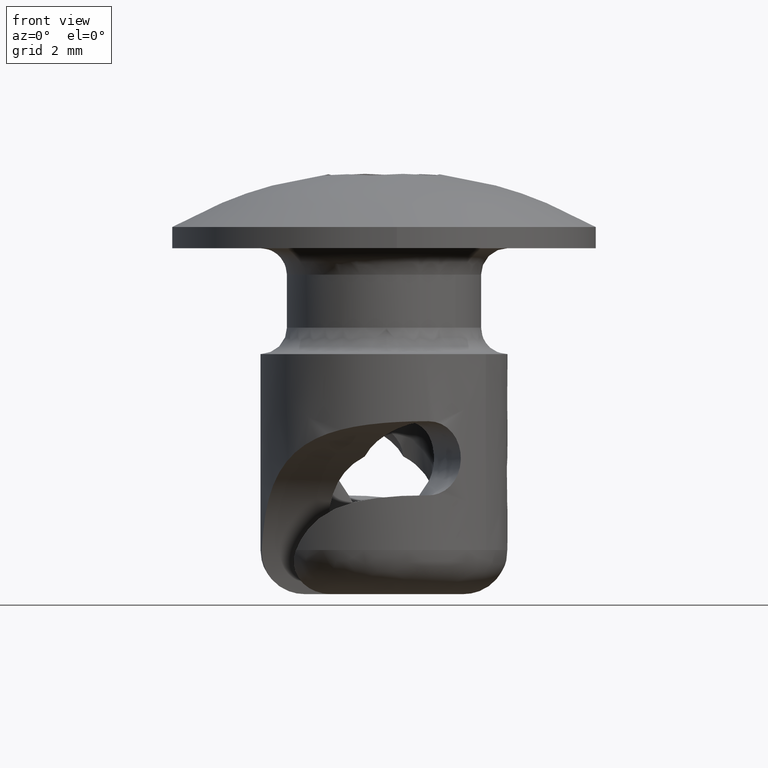
[diagram: clean part render]
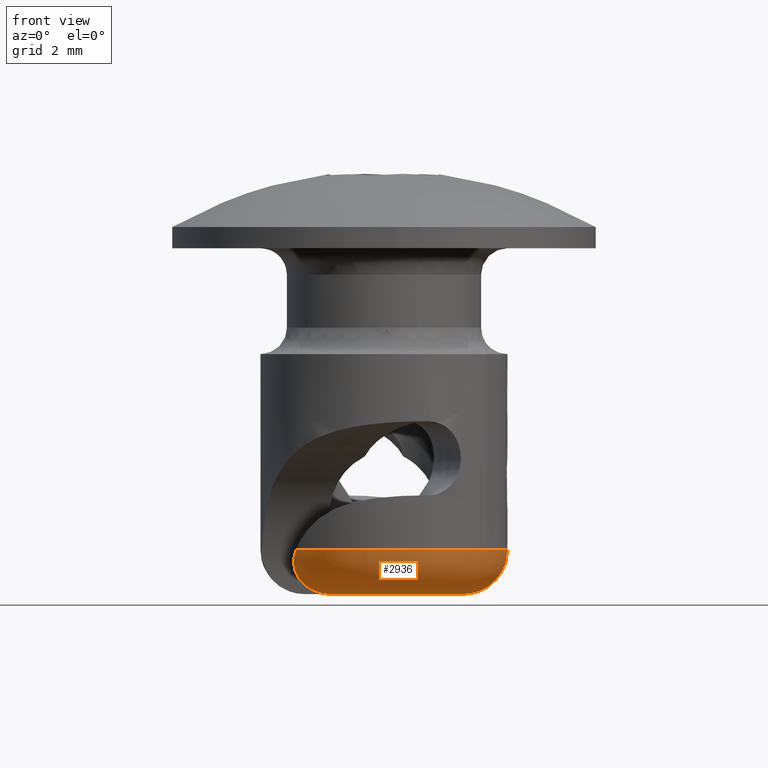
[diagram: same view with one face highlighted and labeled with its STEP entity id]
A machine part, front view. The second image highlights one B-rep face of the part: STEP entity #2936.
In plain terms, the highlighted face is a freeform B-spline surface patch.
Its self-contained STEP definition (entity closure, byte-faithful):
#1023=CARTESIAN_POINT('',(2.884441633109506,-1.982421868620396,-2.293592999999901));
#1024=VERTEX_POINT('',#1023);
#1030=CARTESIAN_POINT('',(3.462048954059370,0.514020466223215,-2.293592999999900));
#1031=VERTEX_POINT('',#1030);
#1032=CARTESIAN_POINT('',(3.462048954059370,0.514020466223215,-2.293592999999900));
#1033=CARTESIAN_POINT('',(3.664243010850260,-0.847804147440930,-2.293592999999900));
#1034=CARTESIAN_POINT('',(2.884441633109506,-1.982421868620396,-2.293592999999901));
#1042=(BOUNDED_CURVE()B_SPLINE_CURVE(2,(#1032,#1033,#1034),.UNSPECIFIED.,.F.,.U.)B_SPLINE_CURVE_WITH_KNOTS((3,3),(0.0,0.296886411692265),.UNSPECIFIED.)CURVE()GEOMETRIC_REPRESENTATION_ITEM()RATIONAL_B_SPLINE_CURVE((1.0,0.886746299966919,0.907986538388612))REPRESENTATION_ITEM(''));
#1043=EDGE_CURVE('',#1031,#1024,#1042,.T.);
#1340=CARTESIAN_POINT('',(-2.494594157352935,-2.454994906328830,-2.293593000000170));
#1341=VERTEX_POINT('',#1340);
#1369=CARTESIAN_POINT('',(2.884441633109506,-1.982421868620396,-2.293592999999901));
#1370=CARTESIAN_POINT('',(2.371630381921587,-2.728566656032627,-2.293592999999900));
#1371=CARTESIAN_POINT('',(1.561331248175794,-3.132450276296467,-2.293592999999900));
#1372=CARTESIAN_POINT('',(-0.712513817310256,-4.265820335230390,-2.293592999999900));
#1373=CARTESIAN_POINT('',(-2.494594157352935,-2.454994906328830,-2.293593000000170));
#1381=(BOUNDED_CURVE()B_SPLINE_CURVE(2,(#1369,#1370,#1371,#1372,#1373),.UNSPECIFIED.,.F.,.U.)B_SPLINE_CURVE_WITH_KNOTS((3,2,3),(0.296886411692266,0.500000000000000,1.0),.UNSPECIFIED.)CURVE()GEOMETRIC_REPRESENTATION_ITEM()RATIONAL_B_SPLINE_CURVE((0.907986538388612,0.922517958057673,1.0,0.809264258024592,1.0))REPRESENTATION_ITEM(''));
#1382=EDGE_CURVE('',#1024,#1341,#1381,.T.);
#2396=CARTESIAN_POINT('',(-1.481521576788936,-1.693397094415515,-3.543592999999900));
#2397=VERTEX_POINT('',#2396);
#2403=CARTESIAN_POINT('',(-2.494594157352935,-2.454994906328830,-2.293593000000170));
#2404=CARTESIAN_POINT('',(-2.525060286342464,-2.424037356405580,-2.368592025162579));
#2405=CARTESIAN_POINT('',(-2.545622849602007,-2.392507131618945,-2.445536281936182));
#2406=CARTESIAN_POINT('',(-2.560162331232892,-2.343938595684953,-2.564019439444205));
#2407=CARTESIAN_POINT('',(-2.562244234420207,-2.327407154092227,-2.604325076995439));
#2408=CARTESIAN_POINT('',(-2.560528259753233,-2.294612158668759,-2.683888560416496));
#2409=CARTESIAN_POINT('',(-2.553053462775494,-2.261989166318077,-2.762639108222003));
#2410=CARTESIAN_POINT('',(-2.534194901064492,-2.229382344630019,-2.839646862620474));
#2411=CARTESIAN_POINT('',(-2.509524325051959,-2.196575566413181,-2.915677501873986));
#2412=CARTESIAN_POINT('',(-2.494335843632051,-2.180193696691496,-2.952907223062075));
#2413=CARTESIAN_POINT('',(-2.459200587687832,-2.147933335071070,-3.024198635678383));
#2414=CARTESIAN_POINT('',(-2.439176729040300,-2.131948246176656,-3.058509627772735));
#2415=CARTESIAN_POINT('',(-2.394444713212994,-2.100006579208119,-3.124470241112338));
#2416=CARTESIAN_POINT('',(-2.369560492272723,-2.083950631116312,-3.156302409199462));
#2417=CARTESIAN_POINT('',(-2.289460565003135,-2.036284448005235,-3.246092009014297));
#2418=CARTESIAN_POINT('',(-2.229093999555122,-2.005202526913044,-3.298414123586988));
#2419=CARTESIAN_POINT('',(-2.129568271131124,-1.958118791032269,-3.366372625103756));
#2420=CARTESIAN_POINT('',(-2.094897224070785,-1.942366795856776,-3.387208268627862));
#2421=CARTESIAN_POINT('',(-2.024136079359610,-1.911155689195715,-3.424633163135800));
#2422=CARTESIAN_POINT('',(-1.987873292186974,-1.895614208863496,-3.441346307514108));
#2423=CARTESIAN_POINT('',(-1.913739481529352,-1.864487386932241,-3.470967959581817));
#2424=CARTESIAN_POINT('',(-1.875867898849090,-1.848902444412920,-3.483875556994659));
#2425=CARTESIAN_POINT('',(-1.798605640559295,-1.817559996903800,-3.505966411493013));
#2426=CARTESIAN_POINT('',(-1.759285382560773,-1.801832930974153,-3.515108278104711));
#2427=CARTESIAN_POINT('',(-1.641221292160070,-1.755076592276609,-3.536712185907897));
#2428=CARTESIAN_POINT('',(-1.561711357362552,-1.724179080030547,-3.543593001325574));
#2429=CARTESIAN_POINT('',(-1.481521576788936,-1.693397094415515,-3.543592999999900));
#2430=B_SPLINE_CURVE_WITH_KNOTS('',3,(#2403,#2404,#2405,#2406,#2407,#2408,#2409,#2410,#2411,#2412,#2413,#2414,#2415,#2416,#2417,#2418,#2419,#2420,#2421,#2422,#2423,#2424,#2425,#2426,#2427,#2428,#2429),.UNSPECIFIED.,.F.,.U.,(4,2,2,1,2,2,2,2,2,2,2,2,2,4),(0.0,0.125000000000000,0.187500000000001,0.250000000000001,0.312500000000001,0.375000000000002,0.437500000000002,0.500000000000002,0.625000000000002,0.687500000000002,0.750000000000001,0.812500000000001,0.875000000000001,1.0),.UNSPECIFIED.);
#2431=EDGE_CURVE('',#1341,#2397,#2430,.T.);
#2450=CARTESIAN_POINT('',(2.234086913325940,-0.267124625514370,-3.543592999999905));
#2451=VERTEX_POINT('',#2450);
#2452=CARTESIAN_POINT('',(3.462048954059370,0.514020466223215,-2.293592999999900));
#2453=CARTESIAN_POINT('',(3.466520936112482,0.483900613403860,-2.377233078083135));
#2454=CARTESIAN_POINT('',(3.462261446604222,0.453297991274562,-2.459589166846589));
#2455=CARTESIAN_POINT('',(3.443303781216662,0.406410386184397,-2.581164612434825));
#2456=CARTESIAN_POINT('',(3.434875022025604,0.390613498027565,-2.621360018674704));
#2457=CARTESIAN_POINT('',(3.413712932025836,0.358592510517290,-2.701045450037135));
#2458=CARTESIAN_POINT('',(3.400913754697026,0.342318701322825,-2.740643125948144));
#2459=CARTESIAN_POINT('',(3.356859094383991,0.293747519396140,-2.855752456070069));
#2460=CARTESIAN_POINT('',(3.319829786384812,0.261380601487184,-2.928443509355150));
#2461=CARTESIAN_POINT('',(3.253119260807239,0.212117392207603,-3.031245457366315));
#2462=CARTESIAN_POINT('',(3.228921477610804,0.195520153312605,-3.064573417679068));
#2463=CARTESIAN_POINT('',(3.177079303227523,0.162187703508142,-3.128545387694536));
#2464=CARTESIAN_POINT('',(3.149681443874029,0.145602488933550,-3.158910101556500));
#2465=CARTESIAN_POINT('',(3.063278910468466,0.095880029603231,-3.245261047811507));
#2466=CARTESIAN_POINT('',(3.000097813163403,0.062774160020661,-3.296539784913001));
#2467=CARTESIAN_POINT('',(2.897185074890943,0.012417843124919,-3.363811869612836));
#2468=CARTESIAN_POINT('',(2.861514724056336,-0.004476960937226,-3.384585642046241));
#2469=CARTESIAN_POINT('',(2.788967642703661,-0.037915901147330,-3.422065245912386));
#2470=CARTESIAN_POINT('',(2.714859937741864,-0.071180478601859,-3.455723508377335));
#2471=CARTESIAN_POINT('',(2.637792671119629,-0.104286869101826,-3.481940021104587));
#2472=CARTESIAN_POINT('',(2.559286364368190,-0.137386978258453,-3.504458252996117));
#2473=CARTESIAN_POINT('',(2.519169497840591,-0.153992315693092,-3.513893325522961));
#2474=CARTESIAN_POINT('',(2.397674936892843,-0.203468970889323,-3.536397302515123));
#2475=CARTESIAN_POINT('',(2.316121947276281,-0.235634313286025,-3.543593001355546));
#2476=CARTESIAN_POINT('',(2.234086913325940,-0.267124625514370,-3.543592999999905));
#2477=B_SPLINE_CURVE_WITH_KNOTS('',3,(#2452,#2453,#2454,#2455,#2456,#2457,#2458,#2459,#2460,#2461,#2462,#2463,#2464,#2465,#2466,#2467,#2468,#2469,#2470,#2471,#2472,#2473,#2474,#2475,#2476),.UNSPECIFIED.,.F.,.U.,(4,2,2,2,2,2,2,2,2,1,2,2,4),(0.0,0.125000000000000,0.187500000000000,0.250000000000000,0.375000000000000,0.437500000000001,0.500000000000001,0.625000000000001,0.687500000000001,0.750000000000001,0.812500000000001,0.875000000000000,1.0),.UNSPECIFIED.);
#2478=EDGE_CURVE('',#1031,#2451,#2477,.T.);
#2885=CARTESIAN_POINT('',(2.234086913325940,-0.267124625514370,-3.543592999999905));
#2886=CARTESIAN_POINT('',(2.073004704235737,-1.614329715994022,-3.543592999999901));
#2887=CARTESIAN_POINT('',(0.806319995610525,-2.100558965252775,-3.543592999999900));
#2888=CARTESIAN_POINT('',(-0.460364713014687,-2.586788214511528,-3.543592999999901));
#2889=CARTESIAN_POINT('',(-1.481521576788936,-1.693397094415515,-3.543592999999900));
#2897=(BOUNDED_CURVE()B_SPLINE_CURVE(2,(#2885,#2886,#2887,#2888,#2889),.UNSPECIFIED.,.F.,.U.)B_SPLINE_CURVE_WITH_KNOTS((3,2,3),(0.0,0.500000000000000,1.0),.UNSPECIFIED.)CURVE()GEOMETRIC_REPRESENTATION_ITEM()RATIONAL_B_SPLINE_CURVE((1.0,0.856348839899367,1.0,0.856348839899367,1.0))REPRESENTATION_ITEM(''));
#2898=EDGE_CURVE('',#2451,#2397,#2897,.T.);
#2906=CARTESIAN_POINT('',(3.371500837255073,0.928337588532219,-2.206671552915546));
#2907=CARTESIAN_POINT('',(4.158159201302516,-1.928618076931088,-2.206671552915546));
#2908=CARTESIAN_POINT('',(1.469028955151145,-3.173449621913196,-2.206671552915546));
#2909=CARTESIAN_POINT('',(-1.224119537624748,-4.420141262798388,-2.206671552915546));
#2910=CARTESIAN_POINT('',(-2.892252421419645,-1.965630815968675,-2.206671552915546));
#2911=CARTESIAN_POINT('',(3.467861975097667,0.954870480158562,-3.640514542103694));
#2912=CARTESIAN_POINT('',(4.277003885408955,-1.983740066017759,-3.640514542103694));
#2913=CARTESIAN_POINT('',(1.511015390414004,-3.264150241967817,-3.640514542103695));
#2914=CARTESIAN_POINT('',(-1.259106197036913,-4.546473677372257,-3.640514542103694));
#2915=CARTESIAN_POINT('',(-2.974916121566581,-2.021810669140362,-3.640514542103694));
#2916=CARTESIAN_POINT('',(2.085466066776982,0.574229885398377,-3.540567200231994));
#2917=CARTESIAN_POINT('',(2.572059249919390,-1.192960568411738,-3.540567200231994));
#2918=CARTESIAN_POINT('',(0.908678415033352,-1.962960064549293,-3.540567200231994));
#2919=CARTESIAN_POINT('',(-0.757187935172980,-2.734110136372303,-3.540567200231994));
#2920=CARTESIAN_POINT('',(-1.789023515810533,-1.215855064076228,-3.540567200231994));
#2928=(BOUNDED_SURFACE()B_SPLINE_SURFACE(2,2,((#2906,#2911,#2916),(#2907,#2912,#2917),(#2908,#2913,#2918),(#2909,#2914,#2919),(#2910,#2915,#2920)),.UNSPECIFIED.,.F.,.F.,.U.)B_SPLINE_SURFACE_WITH_KNOTS((3,2,3),(3,3),(0.0,5.129426548745404,10.264628420134510),(0.0,2.277967578180735),.UNSPECIFIED.)GEOMETRIC_REPRESENTATION_ITEM()RATIONAL_B_SPLINE_SURFACE(((0.897347511813492,0.588861807847500,0.897347523114483),(0.692915075020045,0.454708146386320,0.692915083746460),(0.919258317431990,0.603240224723955,0.919258329008921),(0.692660230693739,0.454540911186208,0.692660239416944),(0.897808406940947,0.589164258720108,0.897808418247742)))REPRESENTATION_ITEM('')SURFACE());
#2929=ORIENTED_EDGE('',*,*,#1043,.T.);
#2930=ORIENTED_EDGE('',*,*,#1382,.T.);
#2931=ORIENTED_EDGE('',*,*,#2431,.T.);
#2932=ORIENTED_EDGE('',*,*,#2898,.F.);
#2933=ORIENTED_EDGE('',*,*,#2478,.F.);
#2934=EDGE_LOOP('',(#2929,#2930,#2931,#2932,#2933));
#2935=FACE_OUTER_BOUND('',#2934,.T.);
#2936=ADVANCED_FACE('',(#2935),#2928,.T.);